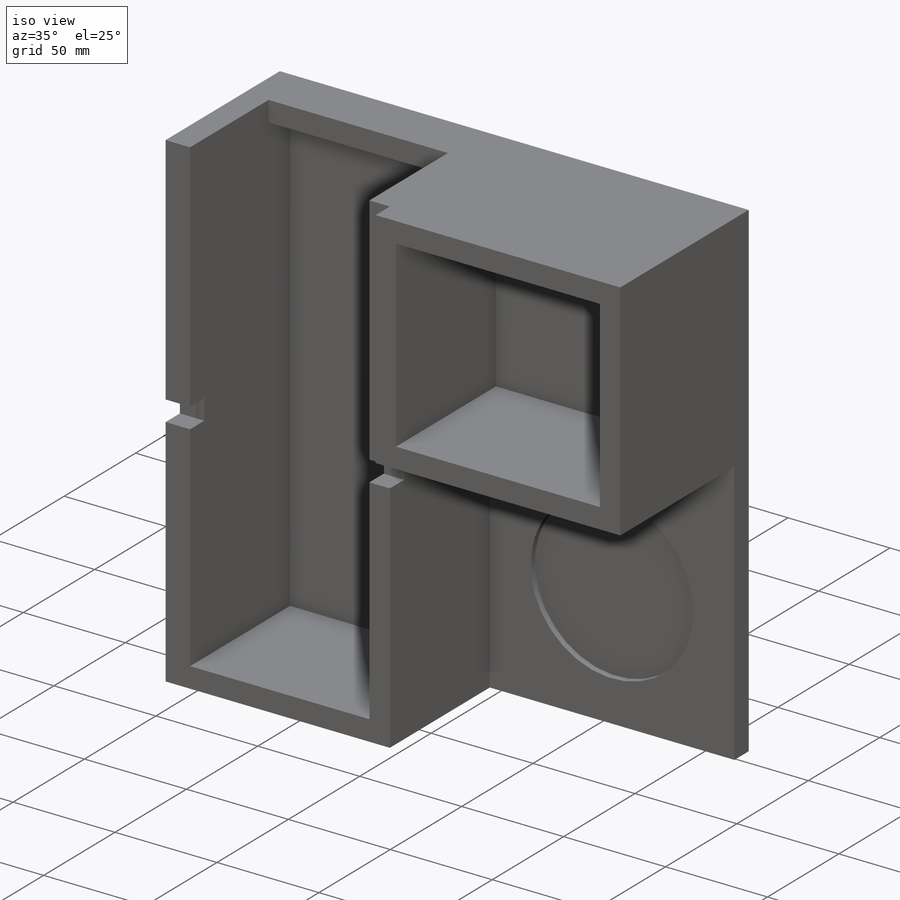
[diagram: iso view]
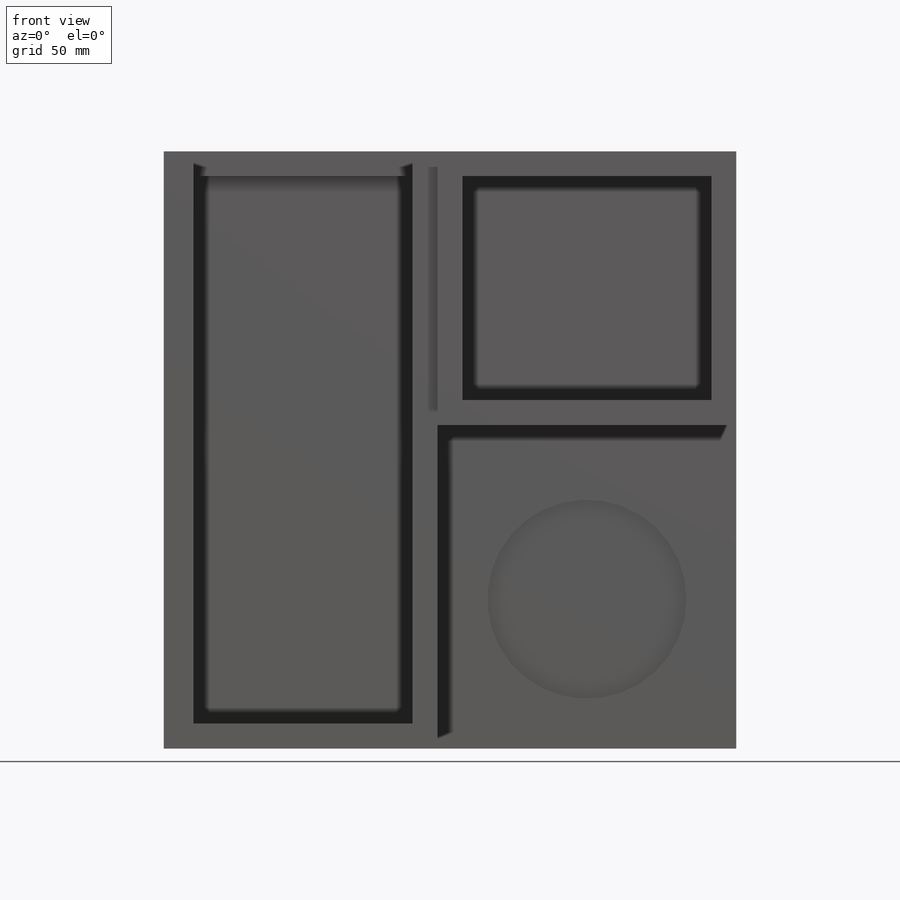
[diagram: front view]
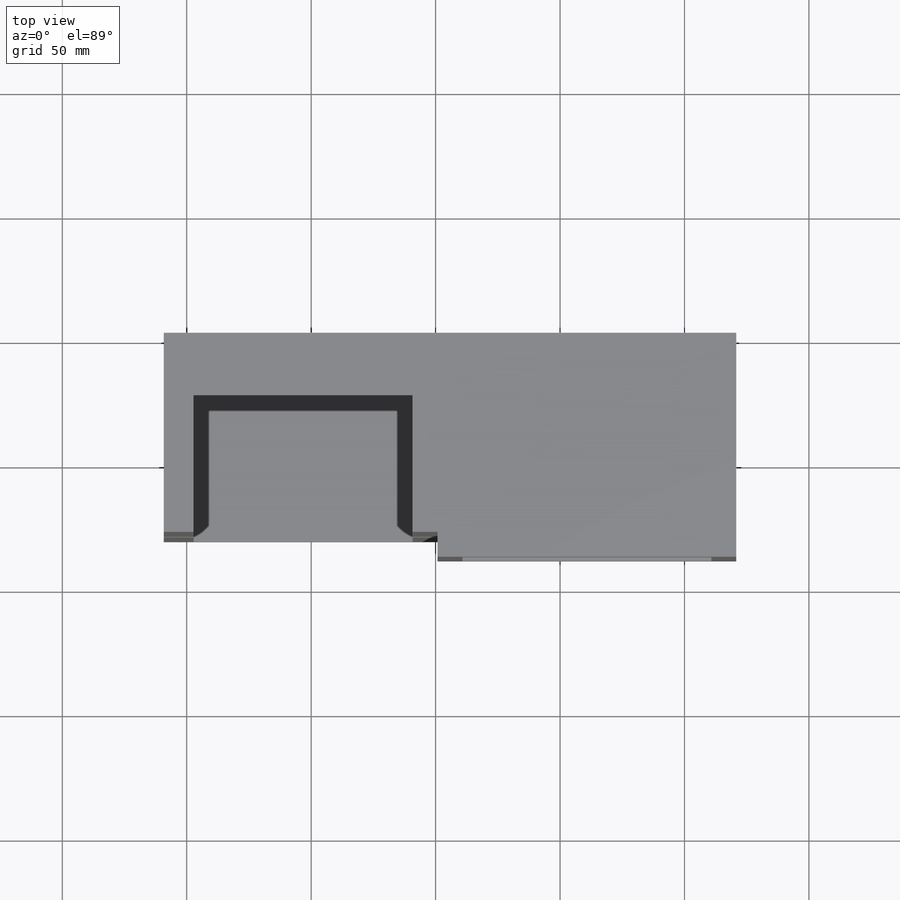
[diagram: top view]
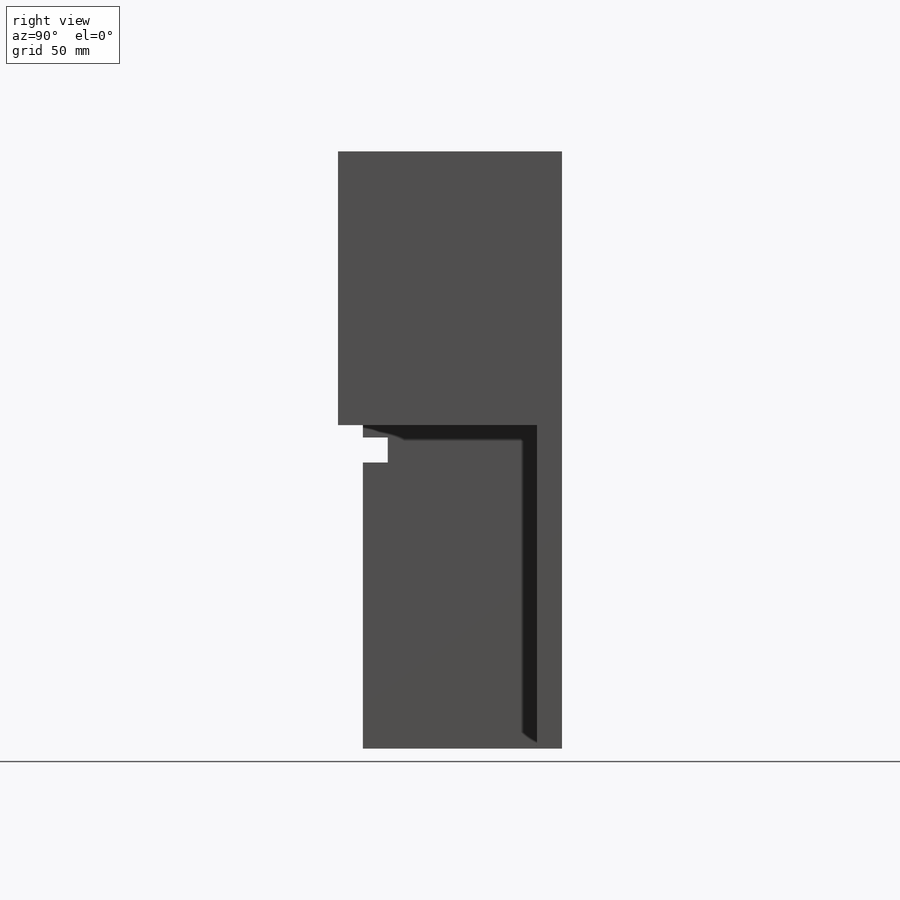
[diagram: right view]
SOLIDWORKS PART (.sldprt)
format: sldprt  version: not decoded by parser v0  size: 340,480 bytes
history: native  units: mm
features: sketch x11, cut_extrude x6, extrude x5, plane x3, material x1 (+9 scaffold rows collapsed)
feature tree (35):
  scaffold x9  (default folders/planes/origin — collapsed)
  material  "Material <não especificado>"
  plane  "Plano frontal"
  plane  "Plano superior"
  plane  "Plano direito"
  sketch  "Esboço1"  dims[D1=340.0mm D2=240.0mm]
  extrude  "Ressalto-extrusão1"  Depth=10mm
  sketch  "Esboço2"  dims[c1.D2=50.0mm c1.D1=45.0mm c1.D3=~114.571716mm c1.D4=~114.571716mm c2.D3=~114.571716mm c2.D4=300.0mm c3.D3=220.0mm c3.D4=10.0mm c3.D5=10.0mm c3.D6=10.0mm]
  extrude  "Ressalto-extrusão4"  Depth=70mm
  sketch  "Esboço7"  dims[c1.D2=80.0mm c1.D1=60.0mm c2.D2=120.0mm c2.D3=60.0mm c2.D4=70.0mm c2.D5=120.0mm c3.D4=70.0mm c3.D5=10.0mm]
  cut_extrude  "Corte-extrusão1"  Depth=3mm
  sketch  "Esboço21"  dims[D1=10.0mm D2=10.0mm D3=25.0mm D4=200.0mm]
  cut_extrude  "Corte-extrusão5"  Depth=100mm
  sketch  "Esboço28"  dims[c1.D1=10.0mm c1.D2=70.0mm c1.D3=10.0mm c1.D4=10.0mm c1.D5=10.0mm c2.D1=10.0mm]
  extrude  "Ressalto-extrusão5"  Depth=80mm
  sketch  "Esboço29"  dims[D1=110.0mm]
  cut_extrude  "Corte-extrusão8"  Depth=250mm
  sketch  "Esboço30"  dims[D1=12.0mm]
  extrude  "Ressalto-extrusão6"  Depth=50mm
  sketch  "Esboço31"  dims[c1.D1=10.0mm c1.D2=10.0mm c1.D3=10.0mm c1.D4=10.0mm c2.D3=20.0mm]
  cut_extrude  "Corte-extrusão9"  Depth=70mm
  sketch  "Esboço38"
  extrude  "Ressalto-extrusão8"  Depth=220mm
  sketch  "Esboço39"  dims[D1=115.0mm D2=115.0mm]
  cut_extrude  "Corte-extrusão10"  Depth=10mm
  sketch  "Esboço40"
  cut_extrude  "Corte-extrusão11"  Depth=10mm
decode coverage: 20 of 22 modeling features carry decoded parameters
note: ~ marks probable driven/reference dimensions
note: suppression state not decoded; provenance and decode notes live in map.json
